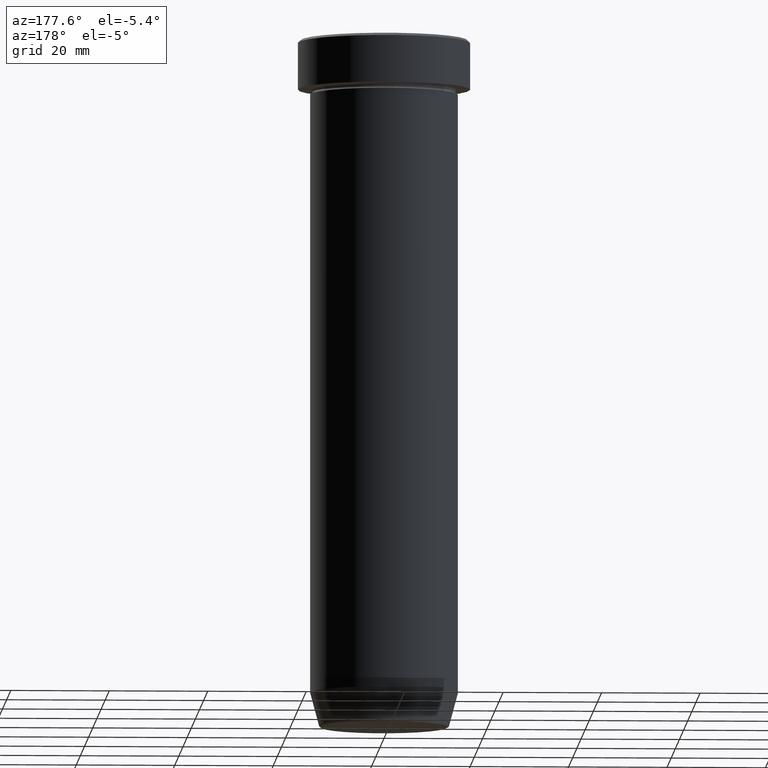
[diagram: clean part render]
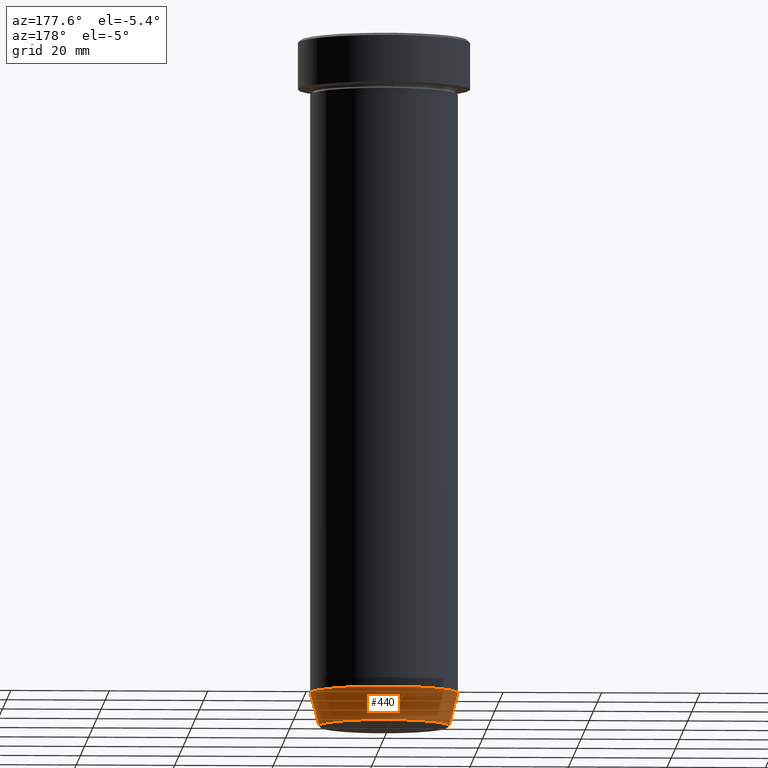
[diagram: same view with one face highlighted and labeled with its STEP entity id]
A machine part, auxiliary view. The second image highlights one B-rep face of the part: STEP entity #440.
In plain terms, the highlighted conical surface has half-angle 15 deg.
Its self-contained STEP definition (entity closure, byte-faithful):
#14 = VECTOR ( 'NONE', #330, 1000.000000000000000 ) ;
#17 = DIRECTION ( 'NONE',  ( 0.2588190451025214611, 0.000000000000000000, 0.9659258262890680902 ) ) ;
#67 = DIRECTION ( 'NONE',  ( -1.000000000000000000, 0.000000000000000000, 0.000000000000000000 ) ) ;
#77 = VERTEX_POINT ( 'NONE', #585 ) ;
#101 = DIRECTION ( 'NONE',  ( 1.000000000000000000, 0.000000000000000000, 0.000000000000000000 ) ) ;
#136 = LINE ( 'NONE', #570, #14 ) ;
#193 = CARTESIAN_POINT ( 'NONE',  ( 0.000000000000000000, 0.000000000000000000, -139.9999999999999716 ) ) ;
#200 = DIRECTION ( 'NONE',  ( -0.000000000000000000, -0.000000000000000000, 1.000000000000000000 ) ) ;
#204 = CARTESIAN_POINT ( 'NONE',  ( 0.000000000000000000, 0.000000000000000000, -132.9999999999999432 ) ) ;
#219 = CIRCLE ( 'NONE', #555, 13.22365507213718416 ) ;
#250 = EDGE_CURVE ( 'NONE', #478, #475, #587, .T. ) ;
#269 = VERTEX_POINT ( 'NONE', #574 ) ;
#275 = ORIENTED_EDGE ( 'NONE', *, *, #510, .T. ) ;
#278 = DIRECTION ( 'NONE',  ( -0.000000000000000000, -0.000000000000000000, 1.000000000000000000 ) ) ;
#307 = EDGE_CURVE ( 'NONE', #77, #478, #517, .T. ) ;
#318 = ORIENTED_EDGE ( 'NONE', *, *, #307, .F. ) ;
#329 = ORIENTED_EDGE ( 'NONE', *, *, #250, .F. ) ;
#330 = DIRECTION ( 'NONE',  ( -0.2588190451025214611, 3.169619151431773569E-17, 0.9659258262890680902 ) ) ;
#367 = AXIS2_PLACEMENT_3D ( 'NONE', #193, #200, #101 ) ;
#380 = CARTESIAN_POINT ( 'NONE',  ( -15.00000000000000355, 1.836970198721029983E-15, -132.9999999999999432 ) ) ;
#383 = FACE_OUTER_BOUND ( 'NONE', #512, .T. ) ;
#391 = DIRECTION ( 'NONE',  ( 1.000000000000000000, 0.000000000000000000, 0.000000000000000000 ) ) ;
#393 = EDGE_CURVE ( 'NONE', #77, #269, #219, .T. ) ;
#397 = DIRECTION ( 'NONE',  ( -0.000000000000000000, -0.000000000000000000, 1.000000000000000000 ) ) ;
#406 = VECTOR ( 'NONE', #17, 1000.000000000000000 ) ;
#424 = CONICAL_SURFACE ( 'NONE', #367, 13.12435565298212659, 0.2617993877991501850 ) ;
#433 = CARTESIAN_POINT ( 'NONE',  ( 15.00000000000000178, 0.000000000000000000, -132.9999999999999432 ) ) ;
#438 = CARTESIAN_POINT ( 'NONE',  ( 0.000000000000000000, 0.000000000000000000, -139.6294095225512422 ) ) ;
#440 = ADVANCED_FACE ( 'NONE', ( #383 ), #424, .T. ) ;
#475 = VERTEX_POINT ( 'NONE', #380 ) ;
#478 = VERTEX_POINT ( 'NONE', #433 ) ;
#486 = ORIENTED_EDGE ( 'NONE', *, *, #393, .T. ) ;
#502 = AXIS2_PLACEMENT_3D ( 'NONE', #204, #278, #391 ) ;
#510 = EDGE_CURVE ( 'NONE', #269, #475, #136, .T. ) ;
#512 = EDGE_LOOP ( 'NONE', ( #486, #275, #329, #318 ) ) ;
#517 = LINE ( 'NONE', #567, #406 ) ;
#555 = AXIS2_PLACEMENT_3D ( 'NONE', #438, #397, #67 ) ;
#567 = CARTESIAN_POINT ( 'NONE',  ( 13.12435565298212659, 0.000000000000000000, -139.9999999999999716 ) ) ;
#570 = CARTESIAN_POINT ( 'NONE',  ( -13.12435565298212659, 1.607270014129603202E-15, -139.9999999999999716 ) ) ;
#574 = CARTESIAN_POINT ( 'NONE',  ( -13.22365507213718416, 1.728200442216588189E-15, -139.6294095225512422 ) ) ;
#585 = CARTESIAN_POINT ( 'NONE',  ( 13.22365507213718416, 0.000000000000000000, -139.6294095225512422 ) ) ;
#587 = CIRCLE ( 'NONE', #502, 15.00000000000000178 ) ;